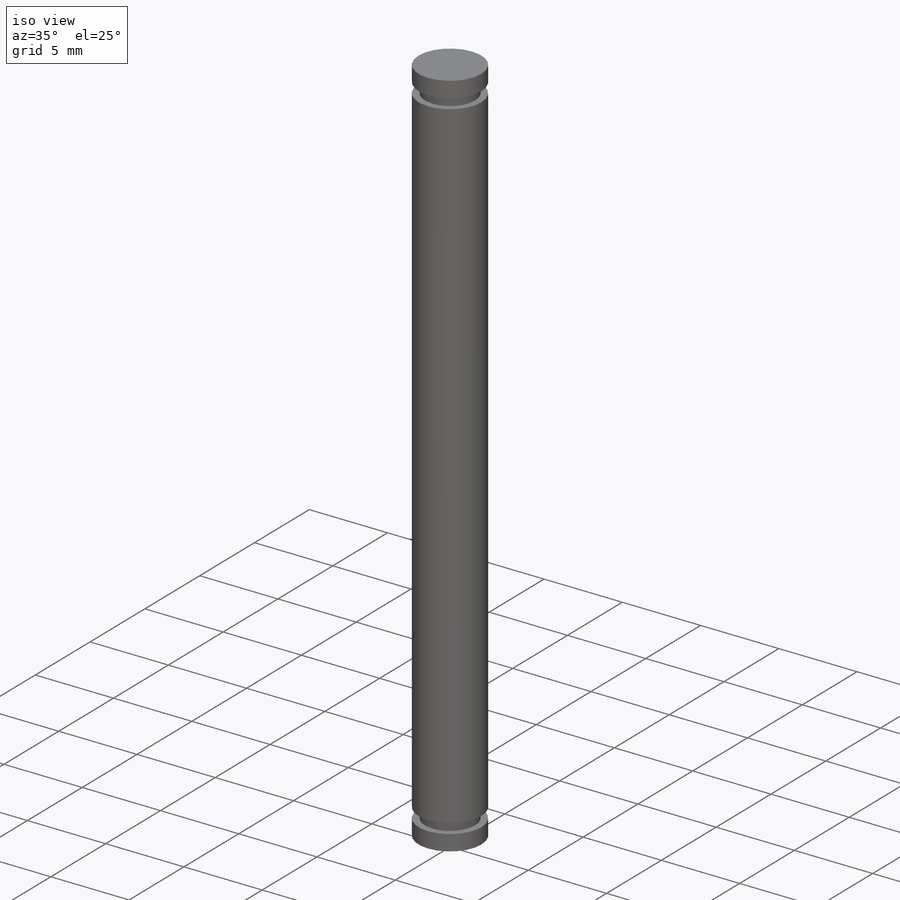
[diagram: iso view]
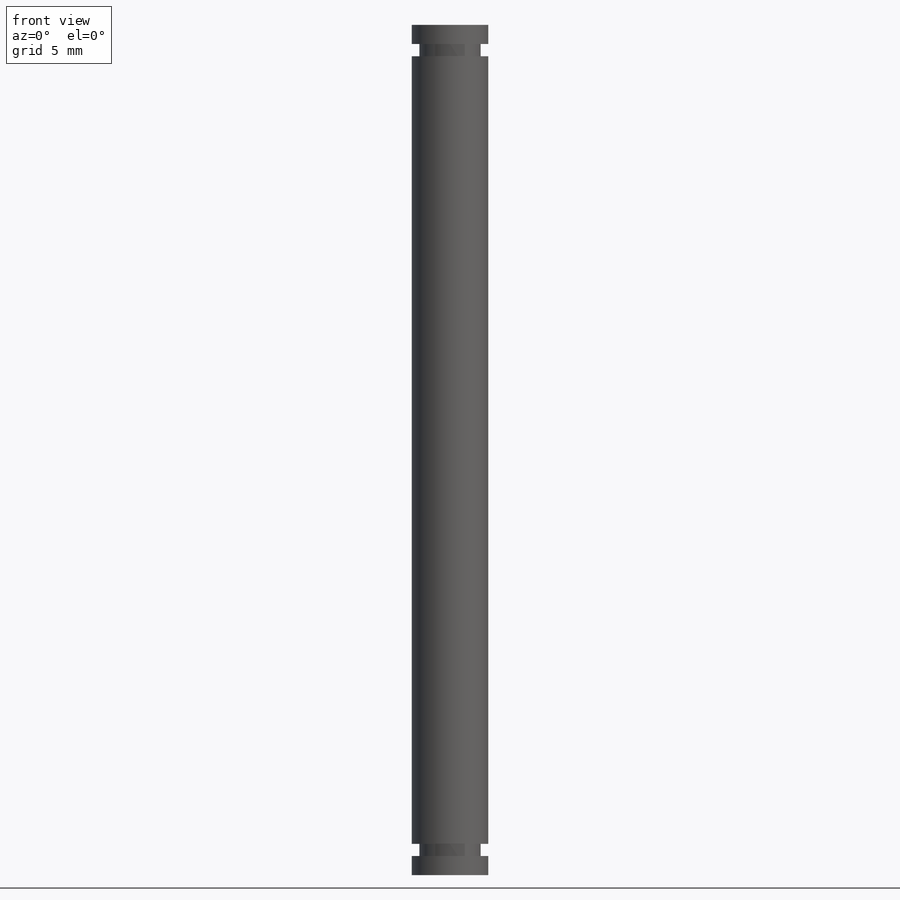
[diagram: front view]
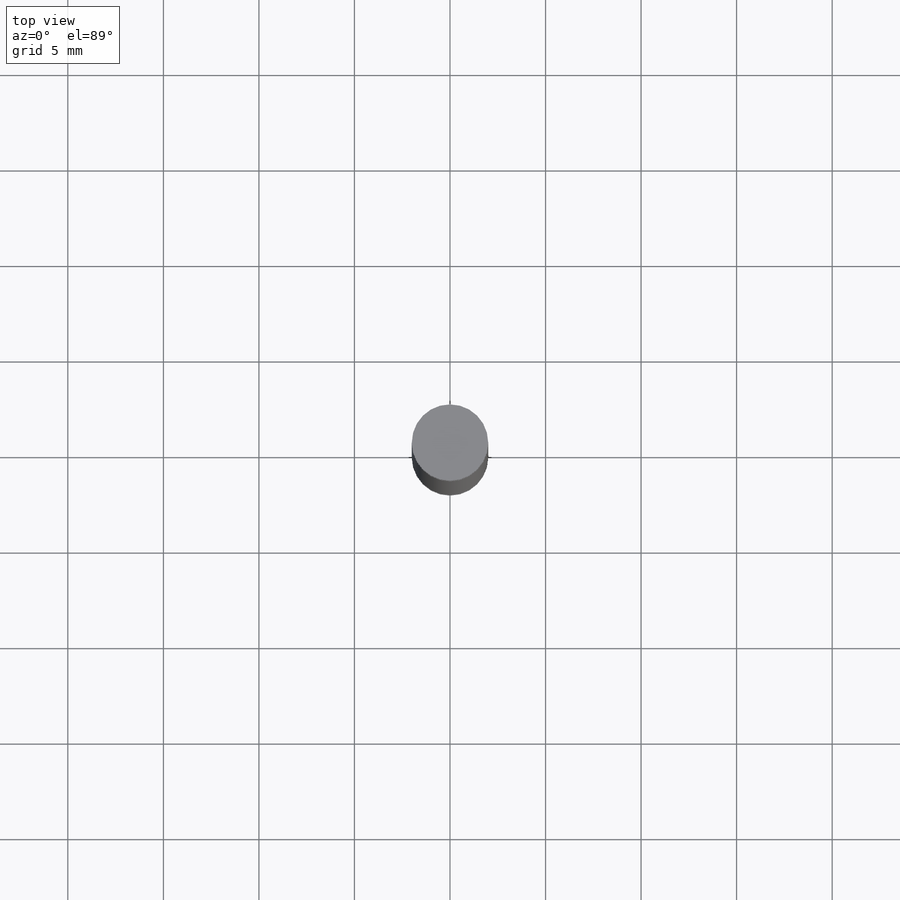
[diagram: top view]
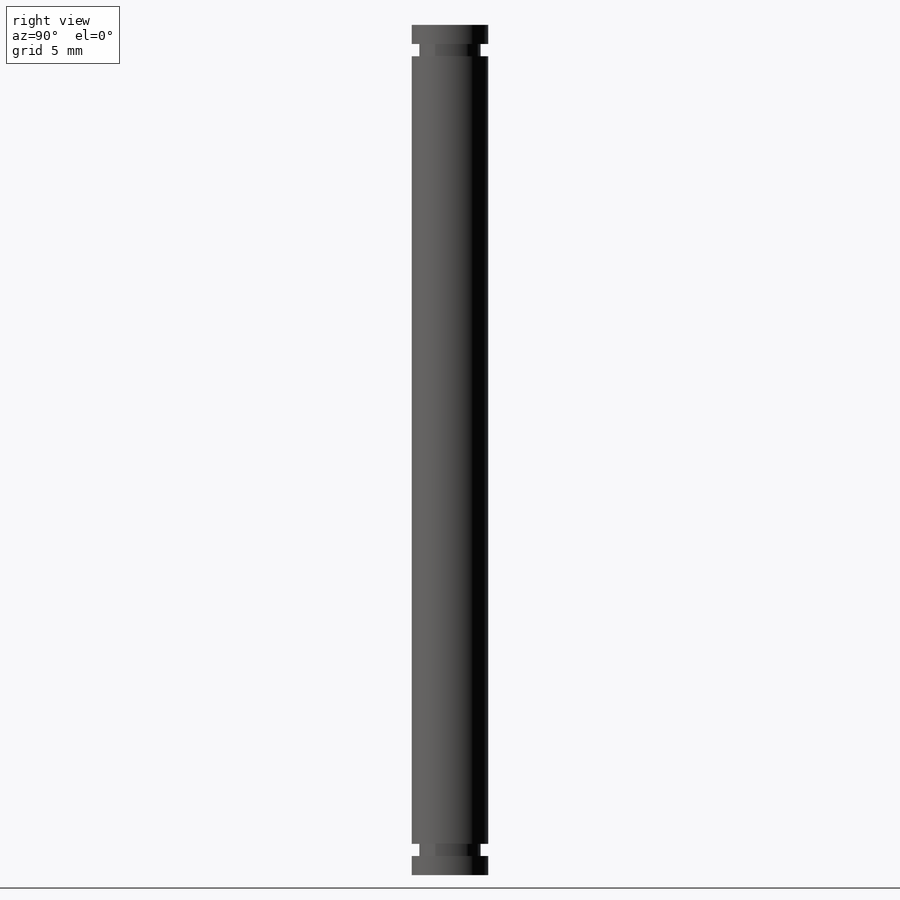
[diagram: right view]
SOLIDWORKS PART (.sldprt)
format: sldprt  version: not decoded by parser v0  size: 164,352 bytes
history: native  units: mm
features: sketch x4, cut_revolve x3, material x1, revolve x1 (+12 scaffold rows collapsed)
feature tree (21):
  scaffold x12  (default folders/planes/origin — collapsed)
  material  "Plain Carbon Steel"
  sketch  "Sketch1"  dims[D1=44.5mm D2=4.0mm]
  revolve  "Revolve1"  Angle=360deg
  sketch  "Esquisse1"  dims[D1=0.64mm D2=1.0mm D3=1.6mm]
  cut_revolve  "Enlèvement de matière-Révolution1"  Angle=360deg
  sketch  "Esquisse2"  dims[D1=0.64mm D2=14.1mm D3=1.15mm]
  cut_revolve  "Enlèvement de matière-Révolution2"  Angle=360deg
  sketch  "Esquisse3"  dims[c1.D1=41.6mm c1.D2=0.64mm c1.D3=1.6mm c2.D1=1.0mm]
  cut_revolve  "Enlèvement de matière-Révolution3"  Angle=360deg
decode coverage: 8 of 8 modeling features carry decoded parameters
note: suppression state not decoded; provenance and decode notes live in map.json
